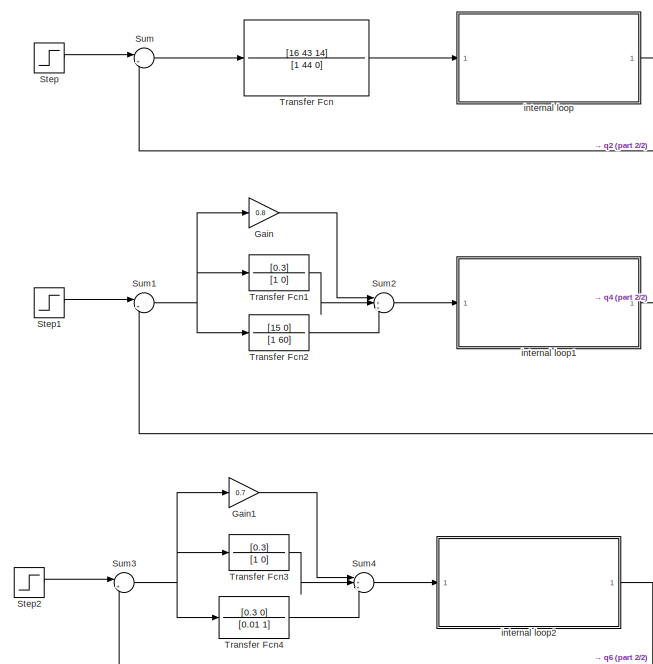
[diagram: root canvas - part 1/2, left side, full height]
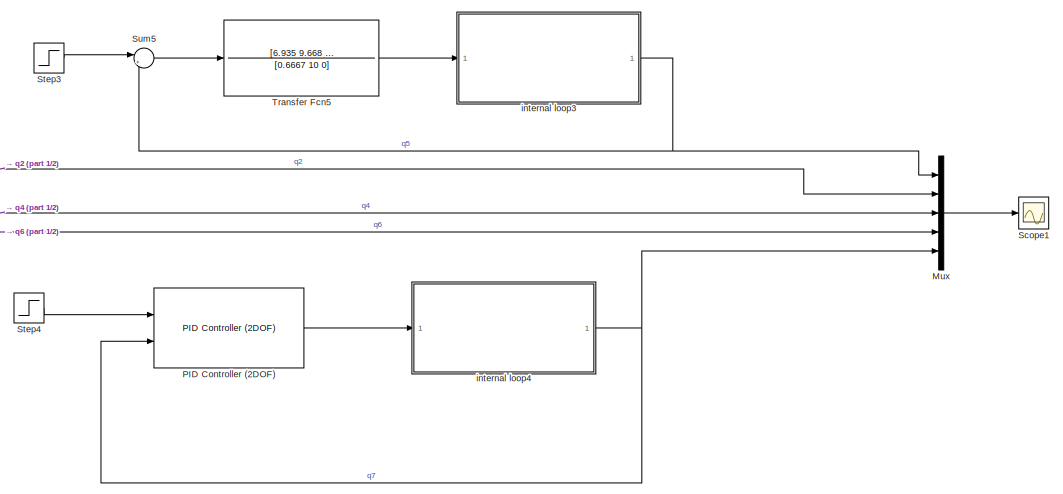
[diagram: root canvas - part 2/2, middle right region]
MODEL slx_5155cefc07af
KIND model
CONFIG AbsTol = auto
CONFIG EnableMultiTasking = off
CONFIG FixedStep = auto
CONFIG MaxStep = auto
CONFIG MinStep = auto
CONFIG RelTol = 1e-3
CONFIG SampleTimeConstraint = Unconstrained
CONFIG SolverName = VariableStepAuto
CONFIG StartTime = 0.0
CONFIG StopTime = 30
BLOCK [Gain] Gain
  Gain = 0.8
BLOCK [Gain] Gain1
  Gain = 0.7
BLOCK [Mux] Mux
  DisplayOption = bar
  Inputs = 5
  Ports = [5, 1]
BLOCK [Reference] PID Controller (2DOF)  REF=pid_lib/PID Controller (2DOF)
  Ports = [2, 1]
  SourceBlock = pid_lib/PID Controller (2DOF)
  SourceProductBaseCode = SL
  SourceType = PID 2dof
BLOCK [Scope] Scope1
  Floating = off
  NumInputPorts = 1
  Ports = [1]
  ScopeSpecificationString = Simulink.scopes.TimeScopeBlockCfg('CurrentConfiguration', extmgr.ConfigurationSet(extmgr.Configuration('Core','General UI',true),extmgr.Configuration('Core','Source UI',true),extmgr.Configuration('Sources','WiredSimulink',true,'DataLoggingVariableName','ScopeData1'),extmgr.Configuration('Visuals','Time Domain',true,'SerializedDisplays',{struct('MinYLimReal','-0.06572','MaxYLimReal','0.59151','YLab...<+1412ch>
BLOCK [Step] Step
  After = 0.5
  SampleTime = 0
  Time = 0
BLOCK [Step] Step1
  After = 0.5
  SampleTime = 0
  Time = 0
BLOCK [Step] Step2
  After = 0.5
  SampleTime = 0
  Time = 0
BLOCK [Step] Step3
  After = 0.5
  SampleTime = 0
  Time = 0
BLOCK [Step] Step4
  After = 0.5
  SampleTime = 0
  Time = 0
BLOCK [Sum] Sum
  Inputs = |+-
  Ports = [2, 1]
BLOCK [Sum] Sum1
  Inputs = |+-
  Ports = [2, 1]
BLOCK [Sum] Sum2
  Inputs = |+++
  Ports = [3, 1]
BLOCK [Sum] Sum3
  Inputs = |+-
  Ports = [2, 1]
BLOCK [Sum] Sum4
  Inputs = |+++
  Ports = [3, 1]
BLOCK [Sum] Sum5
  Inputs = |+-
  Ports = [2, 1]
BLOCK [TransferFcn] Transfer Fcn
  Denominator = [1 44 0]
  Numerator = [16 43 14]
BLOCK [TransferFcn] Transfer Fcn1
  Denominator = [1 0]
  Numerator = [0.3]
BLOCK [TransferFcn] Transfer Fcn2
  Denominator = [1 60]
  Numerator = [15 0]
BLOCK [TransferFcn] Transfer Fcn3
  Denominator = [1 0]
  Numerator = [0.3]
BLOCK [TransferFcn] Transfer Fcn4
  Denominator = [0.01 1]
  Numerator = [0.3 0]
BLOCK [TransferFcn] Transfer Fcn5
  Denominator = [0.6667 10 0]
  Numerator = [6.935 9.668 3.152]
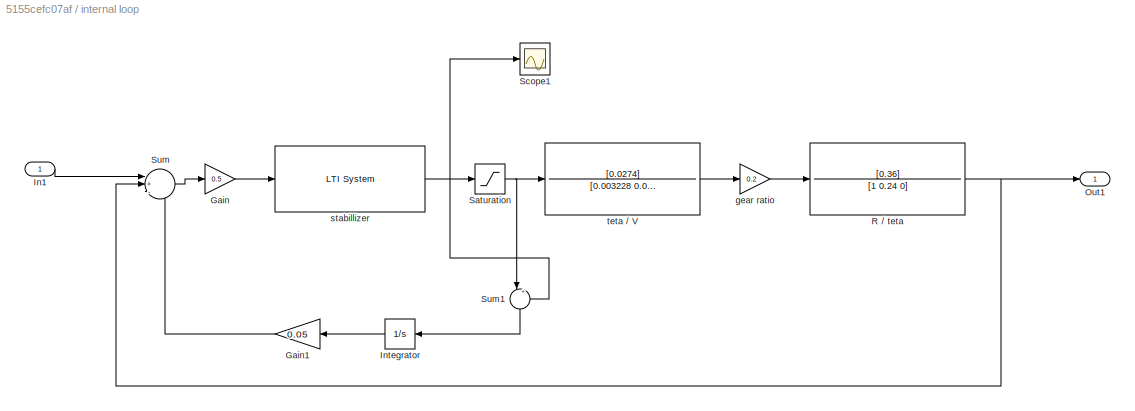
BLOCK [SubSystem] internal loop
  Ports = [1, 1]
  RequestExecContextInheritance = off
BLOCK [Gain] internal loop/Gain
  Gain = 0.5
BLOCK [Gain] internal loop/Gain1
  Gain = 0.05
  NameLocation = top
BLOCK [Inport] internal loop/In1
BLOCK [Integrator] internal loop/Integrator
  NameLocation = top
  Ports = [1, 1]
BLOCK [Outport] internal loop/Out1
BLOCK [TransferFcn] internal loop/R // teta
  Denominator = [1 0.24 0]
  Numerator = [0.36]
BLOCK [Saturate] internal loop/Saturation
  LowerLimit = -20
  UpperLimit = 20
BLOCK [Scope] internal loop/Scope1
  Floating = off
  NumInputPorts = 1
  Ports = [1]
  ScopeSpecificationString = Simulink.scopes.TimeScopeBlockCfg('CurrentConfiguration', extmgr.ConfigurationSet(extmgr.Configuration('Core','General UI',true),extmgr.Configuration('Core','Source UI',true),extmgr.Configuration('Sources','WiredSimulink',true,'DataLoggingVariableName','ScopeData1'),extmgr.Configuration('Visuals','Time Domain',true,'SerializedDisplays',{struct('MinYLimReal','-2.75282','MaxYLimReal','18.75449','YLa...<+1407ch>  <repeated x5 — deduplicated; at blocks: Scope1>
BLOCK [Sum] internal loop/Sum
  Inputs = |+-+
  Ports = [3, 1]
BLOCK [Sum] internal loop/Sum1
  Inputs = |+-
  NameLocation = left
  Ports = [2, 1]
BLOCK [Gain] internal loop/gear ratio
  Gain = 0.2
BLOCK [Reference] internal loop/stabillizer  REF=cstblocks/LTI System
  Ports = [1, 1]
  SourceBlock = cstblocks/LTI System
  SourceProductBaseCode = CT
  SourceType = LTI Block
BLOCK [TransferFcn] internal loop/teta // V
  Denominator = [0.003228 0.003508 0]
  Numerator = [0.0274]
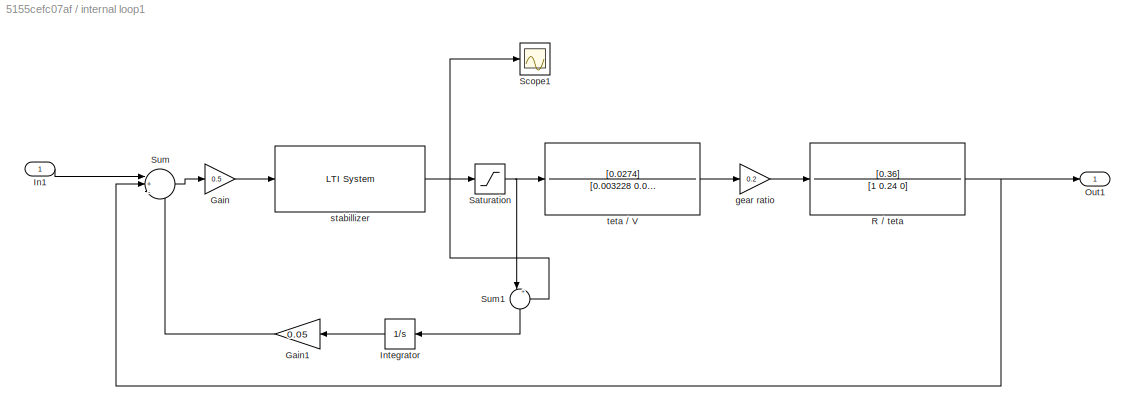
BLOCK [SubSystem] internal loop1
  Ports = [1, 1]
  RequestExecContextInheritance = off
BLOCK [Gain] internal loop1/Gain
  Gain = 0.5
BLOCK [Gain] internal loop1/Gain1
  Gain = 0.05
  NameLocation = top
BLOCK [Inport] internal loop1/In1
BLOCK [Integrator] internal loop1/Integrator
  NameLocation = top
  Ports = [1, 1]
BLOCK [Outport] internal loop1/Out1
BLOCK [TransferFcn] internal loop1/R // teta
  Denominator = [1 0.24 0]
  Numerator = [0.36]
BLOCK [Saturate] internal loop1/Saturation
  LowerLimit = -20
  UpperLimit = 20
BLOCK [Scope] internal loop1/Scope1
  Floating = off
  NumInputPorts = 1
  Ports = [1]
BLOCK [Sum] internal loop1/Sum
  Inputs = |+-+
  Ports = [3, 1]
BLOCK [Sum] internal loop1/Sum1
  Inputs = |+-
  NameLocation = left
  Ports = [2, 1]
BLOCK [Gain] internal loop1/gear ratio
  Gain = 0.2
BLOCK [Reference] internal loop1/stabillizer  REF=cstblocks/LTI System
  Ports = [1, 1]
  SourceBlock = cstblocks/LTI System
  SourceProductBaseCode = CT
  SourceType = LTI Block
BLOCK [TransferFcn] internal loop1/teta // V
  Denominator = [0.003228 0.003508 0]
  Numerator = [0.0274]
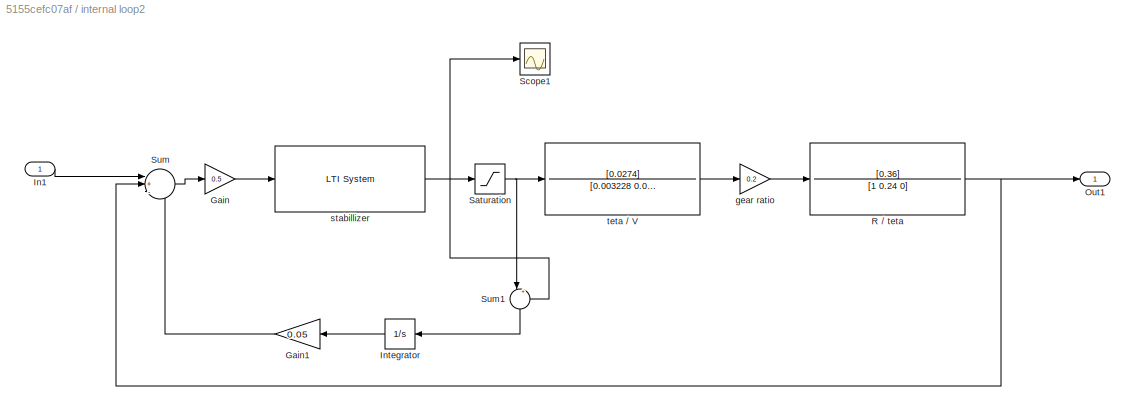
BLOCK [SubSystem] internal loop2
  Ports = [1, 1]
  RequestExecContextInheritance = off
BLOCK [Gain] internal loop2/Gain
  Gain = 0.5
BLOCK [Gain] internal loop2/Gain1
  Gain = 0.05
  NameLocation = top
BLOCK [Inport] internal loop2/In1
BLOCK [Integrator] internal loop2/Integrator
  NameLocation = top
  Ports = [1, 1]
BLOCK [Outport] internal loop2/Out1
BLOCK [TransferFcn] internal loop2/R // teta
  Denominator = [1 0.24 0]
  Numerator = [0.36]
BLOCK [Saturate] internal loop2/Saturation
  LowerLimit = -20
  UpperLimit = 20
BLOCK [Scope] internal loop2/Scope1
  Floating = off
  NumInputPorts = 1
  Ports = [1]
BLOCK [Sum] internal loop2/Sum
  Inputs = |+-+
  Ports = [3, 1]
BLOCK [Sum] internal loop2/Sum1
  Inputs = |+-
  NameLocation = left
  Ports = [2, 1]
BLOCK [Gain] internal loop2/gear ratio
  Gain = 0.2
BLOCK [Reference] internal loop2/stabillizer  REF=cstblocks/LTI System
  Ports = [1, 1]
  SourceBlock = cstblocks/LTI System
  SourceProductBaseCode = CT
  SourceType = LTI Block
BLOCK [TransferFcn] internal loop2/teta // V
  Denominator = [0.003228 0.003508 0]
  Numerator = [0.0274]
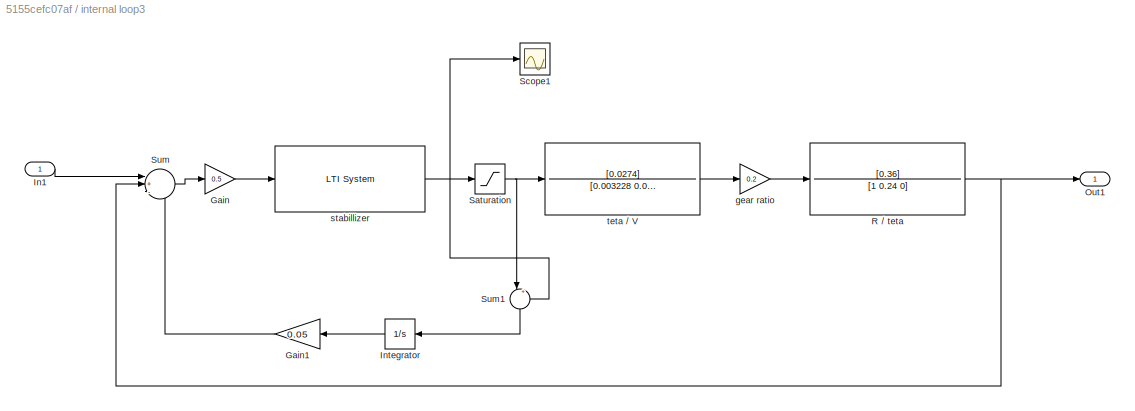
BLOCK [SubSystem] internal loop3
  Ports = [1, 1]
  RequestExecContextInheritance = off
BLOCK [Gain] internal loop3/Gain
  Gain = 0.5
BLOCK [Gain] internal loop3/Gain1
  Gain = 0.05
  NameLocation = top
BLOCK [Inport] internal loop3/In1
BLOCK [Integrator] internal loop3/Integrator
  NameLocation = top
  Ports = [1, 1]
BLOCK [Outport] internal loop3/Out1
BLOCK [TransferFcn] internal loop3/R // teta
  Denominator = [1 0.24 0]
  Numerator = [0.36]
BLOCK [Saturate] internal loop3/Saturation
  LowerLimit = -20
  UpperLimit = 20
BLOCK [Scope] internal loop3/Scope1
  Floating = off
  NumInputPorts = 1
  Ports = [1]
BLOCK [Sum] internal loop3/Sum
  Inputs = |+-+
  Ports = [3, 1]
BLOCK [Sum] internal loop3/Sum1
  Inputs = |+-
  NameLocation = left
  Ports = [2, 1]
BLOCK [Gain] internal loop3/gear ratio
  Gain = 0.2
BLOCK [Reference] internal loop3/stabillizer  REF=cstblocks/LTI System
  Ports = [1, 1]
  SourceBlock = cstblocks/LTI System
  SourceProductBaseCode = CT
  SourceType = LTI Block
BLOCK [TransferFcn] internal loop3/teta // V
  Denominator = [0.003228 0.003508 0]
  Numerator = [0.0274]
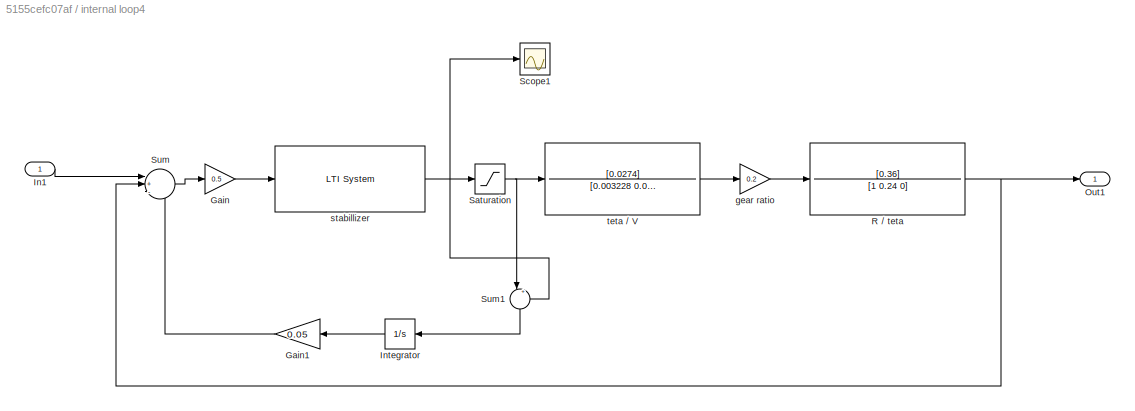
BLOCK [SubSystem] internal loop4
  Ports = [1, 1]
  RequestExecContextInheritance = off
BLOCK [Gain] internal loop4/Gain
  Gain = 0.5
BLOCK [Gain] internal loop4/Gain1
  Gain = 0.05
  NameLocation = top
BLOCK [Inport] internal loop4/In1
BLOCK [Integrator] internal loop4/Integrator
  NameLocation = top
  Ports = [1, 1]
BLOCK [Outport] internal loop4/Out1
BLOCK [TransferFcn] internal loop4/R // teta
  Denominator = [1 0.24 0]
  Numerator = [0.36]
BLOCK [Saturate] internal loop4/Saturation
  LowerLimit = -20
  UpperLimit = 20
BLOCK [Scope] internal loop4/Scope1
  Floating = off
  NumInputPorts = 1
  Ports = [1]
BLOCK [Sum] internal loop4/Sum
  Inputs = |+-+
  Ports = [3, 1]
BLOCK [Sum] internal loop4/Sum1
  Inputs = |+-
  NameLocation = left
  Ports = [2, 1]
BLOCK [Gain] internal loop4/gear ratio
  Gain = 0.2
BLOCK [Reference] internal loop4/stabillizer  REF=cstblocks/LTI System
  Ports = [1, 1]
  SourceBlock = cstblocks/LTI System
  SourceProductBaseCode = CT
  SourceType = LTI Block
BLOCK [TransferFcn] internal loop4/teta // V
  Denominator = [0.003228 0.003508 0]
  Numerator = [0.0274]
LINE Gain1:1 -> Sum4:1
LINE Gain:1 -> Sum2:1
LINE Mux:1 -> Scope1:1
LINE PID Controller (2DOF):1 -> internal loop4:1
LINE Step1:1 -> Sum1:1
LINE Step2:1 -> Sum3:1
LINE Step3:1 -> Sum5:1
LINE Step4:1 -> PID Controller (2DOF):1
LINE Step:1 -> Sum:1
NET Sum1:1 -> Gain:1, Transfer Fcn1:1, Transfer Fcn2:1
LINE Sum2:1 -> internal loop1:1
NET Sum3:1 -> Gain1:1, Transfer Fcn3:1, Transfer Fcn4:1
LINE Sum4:1 -> internal loop2:1
LINE Sum5:1 -> Transfer Fcn5:1
LINE Sum:1 -> Transfer Fcn:1
LINE Transfer Fcn1:1 -> Sum2:2
LINE Transfer Fcn2:1 -> Sum2:3
LINE Transfer Fcn3:1 -> Sum4:2
LINE Transfer Fcn4:1 -> Sum4:3
LINE Transfer Fcn5:1 -> internal loop3:1
LINE Transfer Fcn:1 -> internal loop:1
LINE internal loop/Gain1:1 -> internal loop/Sum:3
LINE internal loop/Gain:1 -> internal loop/stabillizer:1
LINE internal loop/In1:1 -> internal loop/Sum:1
LINE internal loop/Integrator:1 -> internal loop/Gain1:1
NET internal loop/R // teta:1 -> internal loop/Out1:1, internal loop/Sum:2
NET internal loop/Saturation:1 -> internal loop/Sum1:1, internal loop/teta // V:1
LINE internal loop/Sum1:1 -> internal loop/Integrator:1
LINE internal loop/Sum:1 -> internal loop/Gain:1
LINE internal loop/gear ratio:1 -> internal loop/R // teta:1
NET internal loop/stabillizer:1 -> internal loop/Saturation:1, internal loop/Scope1:1, internal loop/Sum1:2
LINE internal loop/teta // V:1 -> internal loop/gear ratio:1
LINE internal loop1/Gain1:1 -> internal loop1/Sum:3
LINE internal loop1/Gain:1 -> internal loop1/stabillizer:1
LINE internal loop1/In1:1 -> internal loop1/Sum:1
LINE internal loop1/Integrator:1 -> internal loop1/Gain1:1
NET internal loop1/R // teta:1 -> internal loop1/Out1:1, internal loop1/Sum:2
NET internal loop1/Saturation:1 -> internal loop1/Sum1:1, internal loop1/teta // V:1
LINE internal loop1/Sum1:1 -> internal loop1/Integrator:1
LINE internal loop1/Sum:1 -> internal loop1/Gain:1
LINE internal loop1/gear ratio:1 -> internal loop1/R // teta:1
NET internal loop1/stabillizer:1 -> internal loop1/Saturation:1, internal loop1/Scope1:1, internal loop1/Sum1:2
LINE internal loop1/teta // V:1 -> internal loop1/gear ratio:1
NET internal loop1:1 -> Mux:3, Sum1:2
LINE internal loop2/Gain1:1 -> internal loop2/Sum:3
LINE internal loop2/Gain:1 -> internal loop2/stabillizer:1
LINE internal loop2/In1:1 -> internal loop2/Sum:1
LINE internal loop2/Integrator:1 -> internal loop2/Gain1:1
NET internal loop2/R // teta:1 -> internal loop2/Out1:1, internal loop2/Sum:2
NET internal loop2/Saturation:1 -> internal loop2/Sum1:1, internal loop2/teta // V:1
LINE internal loop2/Sum1:1 -> internal loop2/Integrator:1
LINE internal loop2/Sum:1 -> internal loop2/Gain:1
LINE internal loop2/gear ratio:1 -> internal loop2/R // teta:1
NET internal loop2/stabillizer:1 -> internal loop2/Saturation:1, internal loop2/Scope1:1, internal loop2/Sum1:2
LINE internal loop2/teta // V:1 -> internal loop2/gear ratio:1
NET internal loop2:1 -> Mux:4, Sum3:2
LINE internal loop3/Gain1:1 -> internal loop3/Sum:3
LINE internal loop3/Gain:1 -> internal loop3/stabillizer:1
LINE internal loop3/In1:1 -> internal loop3/Sum:1
LINE internal loop3/Integrator:1 -> internal loop3/Gain1:1
NET internal loop3/R // teta:1 -> internal loop3/Out1:1, internal loop3/Sum:2
NET internal loop3/Saturation:1 -> internal loop3/Sum1:1, internal loop3/teta // V:1
LINE internal loop3/Sum1:1 -> internal loop3/Integrator:1
LINE internal loop3/Sum:1 -> internal loop3/Gain:1
LINE internal loop3/gear ratio:1 -> internal loop3/R // teta:1
NET internal loop3/stabillizer:1 -> internal loop3/Saturation:1, internal loop3/Scope1:1, internal loop3/Sum1:2
LINE internal loop3/teta // V:1 -> internal loop3/gear ratio:1
NET internal loop3:1 -> Mux:1, Sum5:2
LINE internal loop4/Gain1:1 -> internal loop4/Sum:3
LINE internal loop4/Gain:1 -> internal loop4/stabillizer:1
LINE internal loop4/In1:1 -> internal loop4/Sum:1
LINE internal loop4/Integrator:1 -> internal loop4/Gain1:1
NET internal loop4/R // teta:1 -> internal loop4/Out1:1, internal loop4/Sum:2
NET internal loop4/Saturation:1 -> internal loop4/Sum1:1, internal loop4/teta // V:1
LINE internal loop4/Sum1:1 -> internal loop4/Integrator:1
LINE internal loop4/Sum:1 -> internal loop4/Gain:1
LINE internal loop4/gear ratio:1 -> internal loop4/R // teta:1
NET internal loop4/stabillizer:1 -> internal loop4/Saturation:1, internal loop4/Scope1:1, internal loop4/Sum1:2
LINE internal loop4/teta // V:1 -> internal loop4/gear ratio:1
NET internal loop4:1 -> Mux:5, PID Controller (2DOF):2
NET internal loop:1 -> Mux:2, Sum:2
note: NET lines group one-source signal fan-out (src -> all destinations, sorted); 1:1 wires keep LINE
